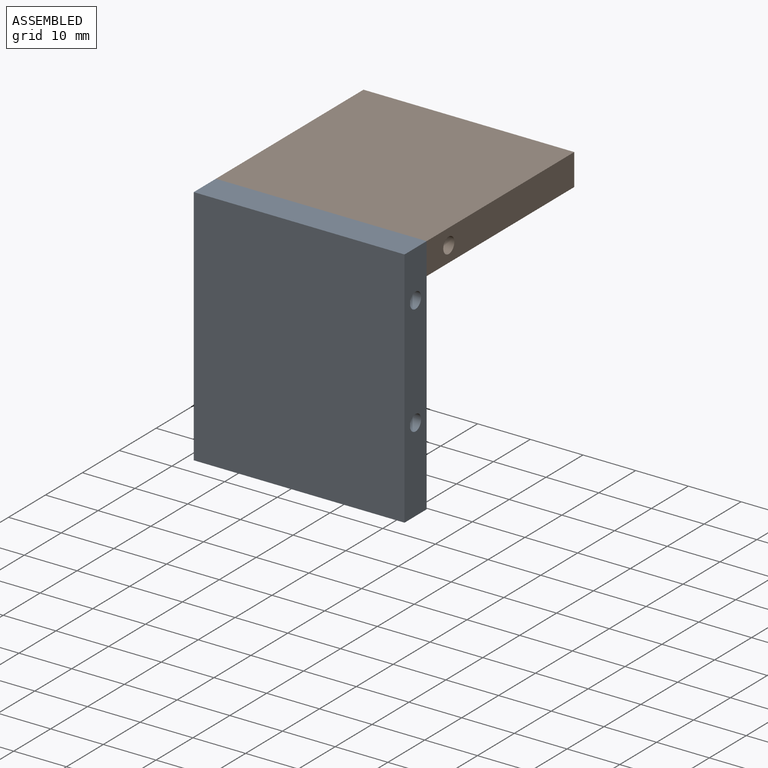
[diagram: assembled view]
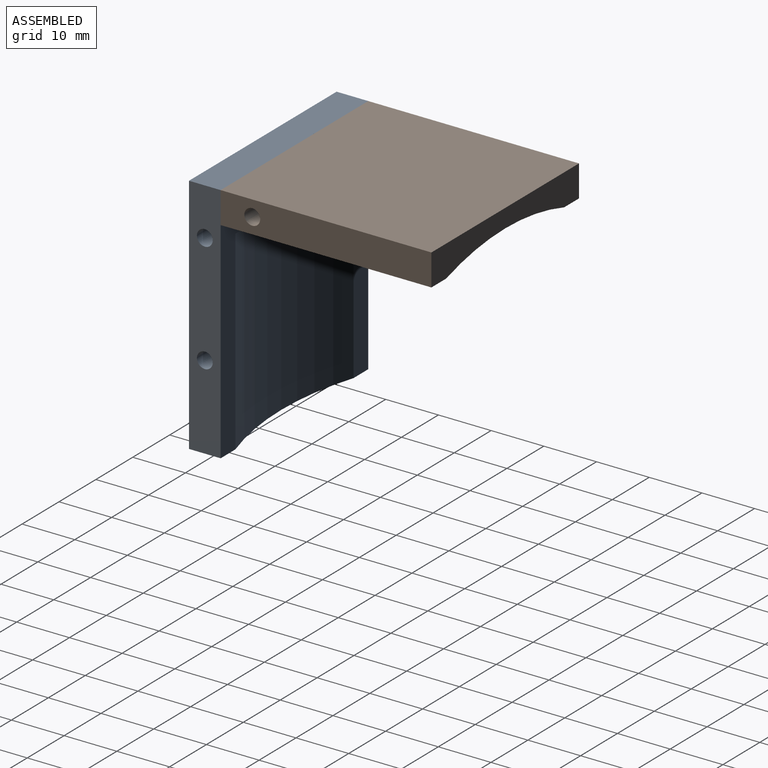
[diagram: assembled view, second angle]
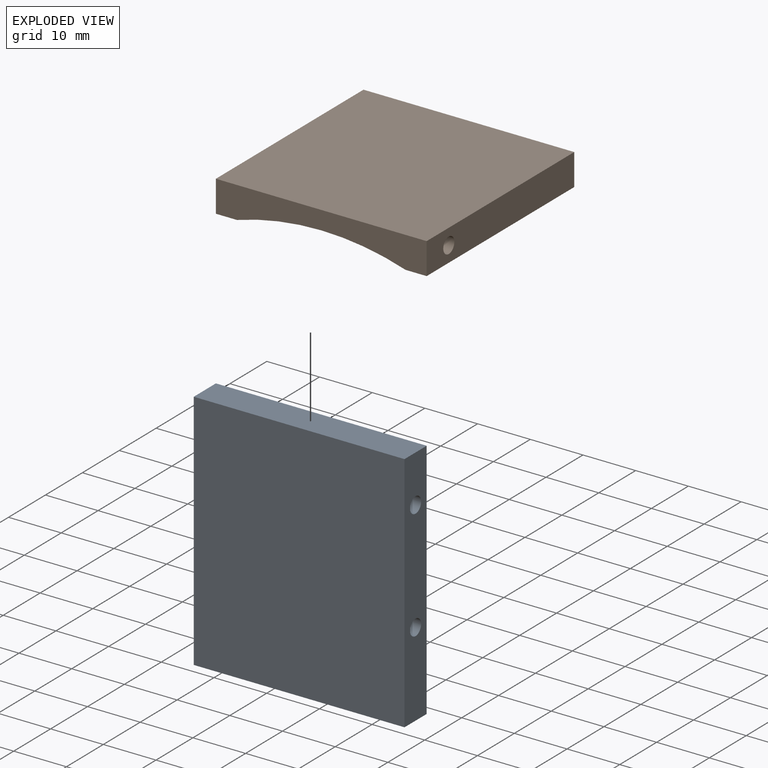
[diagram: exploded view]
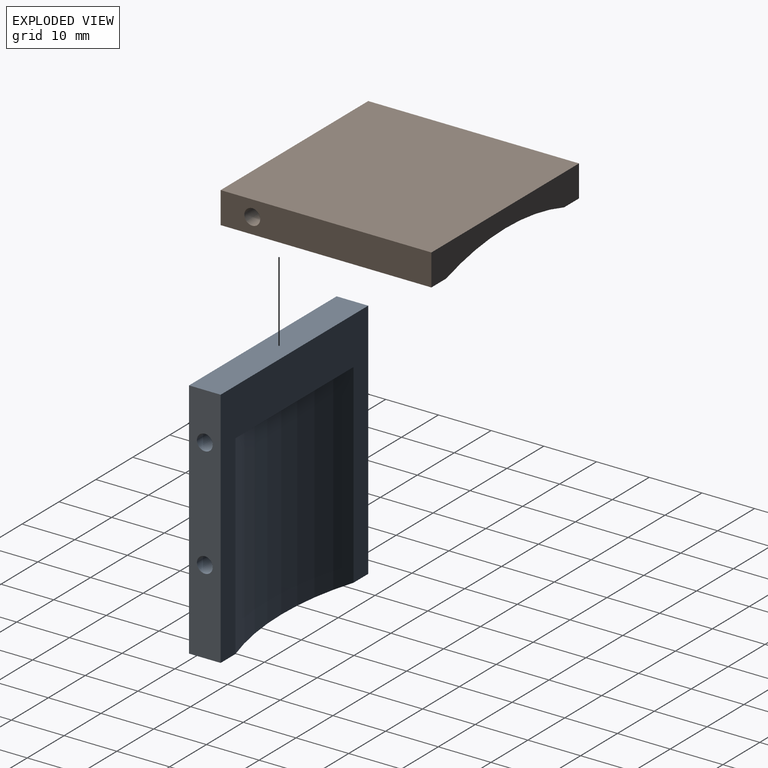
[diagram: exploded view, second angle]
ASSEMBLY  parts=2 mates=3
PART A: 16 faces, bbox 40x6x46 mm
  f0: plane 40x6mm, normal (0,0,-1), area 186.4mm2, adj f2,f3,f4,f5,f14
  f1: plane 40x6mm, normal (0,0,1), area 240mm2, adj f2,f3,f4,f5
  f2: plane 46x6mm, normal (-1,0,0), area 261.9mm2, adj f0,f1,f4,f5,f11,f13
  f3: plane 46x6mm, normal (1,0,0), area 261.9mm2, adj f0,f1,f4,f5,f7,f9
  f4: plane 46x40mm, normal (0,-1,0), area 1840mm2, adj f0,f1,f2,f3
  f5: plane 46x40mm, normal (0,1,0), area 655.4mm2, adj f0,f1,f2,f3,f14,f15
  f6: cone r=0mm half-angle=59deg, axis (1,0,0), area 8.2mm2, adj f7
  f7: cylinder r=1.5mm len=5mm, axis (1,0,0), area 47.1mm2, adj f3,f6
  f8: cone r=0mm half-angle=59deg, axis (1,0,0), area 8.2mm2, adj f9
  f9: cylinder r=1.5mm len=5mm, axis (1,0,0), area 47.1mm2, adj f3,f8
  f10: cone r=0mm half-angle=59deg, axis (-1,0,0), area 8.2mm2, adj f11
  f11: cylinder r=1.5mm len=5mm, axis (-1,0,0), area 47.1mm2, adj f2,f10
  f12: cone r=0mm half-angle=59deg, axis (-1,0,0), area 8.2mm2, adj f13
  f13: cylinder r=1.5mm len=5mm, axis (-1,0,0), area 47.1mm2, adj f2,f12
  f14: cylinder r=52.5mm len=37mm, axis (0,0,-1), area 1203.7mm2, adj f0,f5,f15
  f15: plane 32.02x2.5mm, normal (0,0,-1), area 53.6mm2, adj f5,f14
PART B: 12 faces, bbox 40x6x40 mm
  f0: plane 40x6mm, normal (0,0,-1), area 186.4mm2, adj f1,f3,f4,f5,f6,f11
  f1: plane 40x3.99mm, normal (0,-1,0), area 159.7mm2, adj f0,f2,f3,f11
  f2: plane 40x6mm, normal (0,0,1), area 186.4mm2, adj f1,f3,f4,f5,f6,f11
  f3: plane 40x6mm, normal (-1,0,0), area 232.9mm2, adj f0,f1,f2,f6,f10
  f4: plane 40x6mm, normal (1,0,0), area 232.9mm2, adj f0,f2,f5,f6,f8
  f5: plane 40x3.99mm, normal (0,-1,0), area 159.7mm2, adj f0,f2,f4,f11
  f6: plane 40x40mm, normal (0,1,0), area 1600mm2, adj f0,f2,f3,f4
  f7: cone r=0mm half-angle=59deg, axis (1,0,0), area 8.2mm2, adj f8
  f8: cylinder r=1.5mm len=5mm, axis (1,0,0), area 47.1mm2, adj f4,f7
  f9: cone r=0mm half-angle=59deg, axis (-1,0,0), area 8.2mm2, adj f10
  f10: cylinder r=1.5mm len=5mm, axis (-1,0,0), area 47.1mm2, adj f3,f9
  f11: cylinder r=52.5mm len=40mm, axis (0,0,-1), area 1301.3mm2, adj f0,f1,f2,f5
PLACE A t=(-5.86,6.01,0.32)mm fixed
PLACE B rot(axis=(1,0,0),90deg) t=(-1.27,25.26,22.18)mm
MATE planar B.f6 <-> A.f1  axis (0,0,1) through (6.16,6.01,22.18)mm
MATE planar B.f4 <-> A.f3  axis (1,0,0) through (26.16,26.43,19.18)mm
MATE planar B.f2 <-> A.f5  axis (0,-1,0) through (6.16,6.01,19.76)mm
